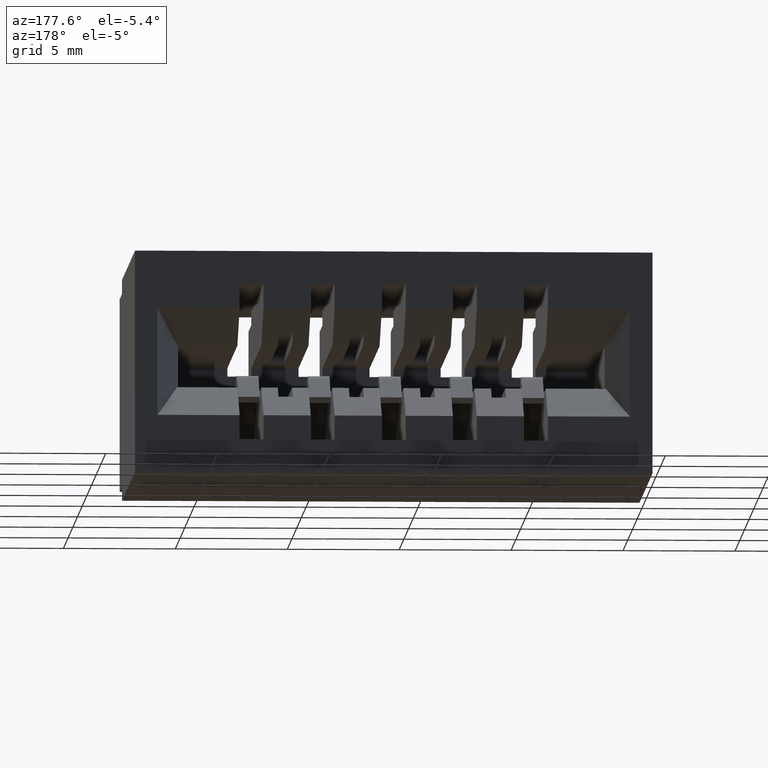
[diagram: clean part render]
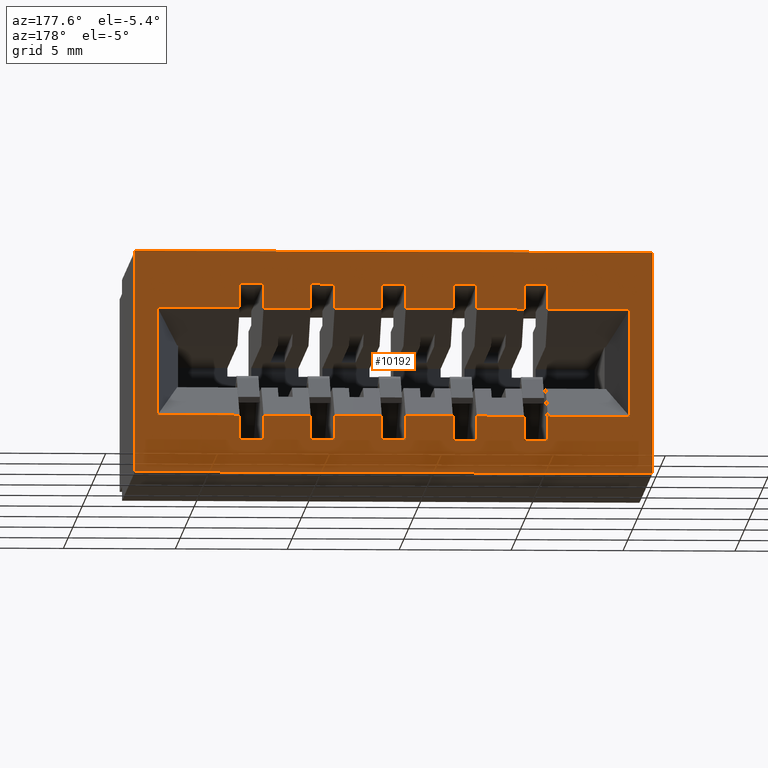
[diagram: same view with one face highlighted and labeled with its STEP entity id]
A machine part, auxiliary view. The second image highlights one B-rep face of the part: STEP entity #10192.
In plain terms, the highlighted planar face has unit normal (0, -1, 0).
Its self-contained STEP definition (entity closure, byte-faithful):
#2 = VERTEX_POINT ( 'NONE', #4984 ) ;
#6 = LINE ( 'NONE', #3711, #7190 ) ;
#96 = ORIENTED_EDGE ( 'NONE', *, *, #2726, .T. ) ;
#138 = CARTESIAN_POINT ( 'NONE',  ( 0.7259999999999997566, 0.6449999999999999067, -5.373951300518784932E-17 ) ) ;
#142 = DIRECTION ( 'NONE',  ( 1.000000000000000000, -0.0000000000000000000, -2.307304048702925122E-16 ) ) ;
#153 = FACE_BOUND ( 'NONE', #6422, .T. ) ;
#180 = LINE ( 'NONE', #1021, #1810 ) ;
#216 = LINE ( 'NONE', #4174, #1243 ) ;
#247 = CARTESIAN_POINT ( 'NONE',  ( 0.9099999999999998090, 0.6449999999999999067, 0.0000000000000000000 ) ) ;
#252 = VERTEX_POINT ( 'NONE', #1601 ) ;
#270 = ORIENTED_EDGE ( 'NONE', *, *, #12639, .F. ) ;
#410 = LINE ( 'NONE', #4374, #7121 ) ;
#424 = LINE ( 'NONE', #3350, #3172 ) ;
#435 = LINE ( 'NONE', #1474, #12814 ) ;
#444 = CARTESIAN_POINT ( 'NONE',  ( 0.3509999999999997566, 0.6449999999999999067, -0.1002500000000000058 ) ) ;
#471 = DIRECTION ( 'NONE',  ( 1.000000000000000000, -0.0000000000000000000, -2.307304048702925122E-16 ) ) ;
#492 = VERTEX_POINT ( 'NONE', #12077 ) ;
#513 = VECTOR ( 'NONE', #629, 39.37007874015748143 ) ;
#553 = CARTESIAN_POINT ( 'NONE',  ( 0.8704026225835154174, 0.6449999999999999067, -0.1002500000000000058 ) ) ;
#565 = DIRECTION ( 'NONE',  ( 2.385081683068867604E-16, 0.0000000000000000000, 1.000000000000000000 ) ) ;
#598 = VECTOR ( 'NONE', #1193, 39.37007874015748143 ) ;
#629 = DIRECTION ( 'NONE',  ( -1.000000000000000000, 0.0000000000000000000, 0.0000000000000000000 ) ) ;
#652 = EDGE_CURVE ( 'NONE', #6637, #2, #10955, .T. ) ;
#720 = ORIENTED_EDGE ( 'NONE', *, *, #2931, .F. ) ;
#743 = EDGE_CURVE ( 'NONE', #3044, #7427, #5314, .T. ) ;
#783 = CARTESIAN_POINT ( 'NONE',  ( 0.3509999999999997011, 0.6449999999999999067, -5.373951300518784932E-17 ) ) ;
#809 = VECTOR ( 'NONE', #11128, 39.37007874015748143 ) ;
#814 = CARTESIAN_POINT ( 'NONE',  ( 1.041979362203021564, 0.6449999999999999067, -0.2897500000000000075 ) ) ;
#831 = CARTESIAN_POINT ( 'NONE',  ( 0.03959737741648388515, 0.6449999999999999067, -0.1002500000000000058 ) ) ;
#866 = LINE ( 'NONE', #8915, #3942 ) ;
#983 = EDGE_CURVE ( 'NONE', #5935, #252, #5880, .T. ) ;
#1019 = VERTEX_POINT ( 'NONE', #1204 ) ;
#1021 = CARTESIAN_POINT ( 'NONE',  ( 0.6839999999999997193, 0.6449999999999999067, -4.404883600063556642E-17 ) ) ;
#1029 = DIRECTION ( 'NONE',  ( -1.000000000000000000, 0.0000000000000000000, 0.0000000000000000000 ) ) ;
#1040 = DIRECTION ( 'NONE',  ( 0.0000000000000000000, 0.0000000000000000000, 1.000000000000000000 ) ) ;
#1124 = LINE ( 'NONE', #1190, #1996 ) ;
#1152 = VECTOR ( 'NONE', #8768, 39.37007874015748143 ) ;
#1156 = CARTESIAN_POINT ( 'NONE',  ( 0.3089999999999997193, 0.6449999999999999067, -0.05750000000000000250 ) ) ;
#1185 = VERTEX_POINT ( 'NONE', #11502 ) ;
#1190 = CARTESIAN_POINT ( 'NONE',  ( 0.0000000000000000000, 0.6449999999999999067, 0.0000000000000000000 ) ) ;
#1193 = DIRECTION ( 'NONE',  ( -1.000000000000000000, 0.0000000000000000000, 0.0000000000000000000 ) ) ;
#1204 = CARTESIAN_POINT ( 'NONE',  ( 0.8704026225835154174, 0.6449999999999999067, -0.2897500000000000075 ) ) ;
#1205 = DIRECTION ( 'NONE',  ( 2.385081683068867604E-16, 0.0000000000000000000, 1.000000000000000000 ) ) ;
#1243 = VECTOR ( 'NONE', #2355, 39.37007874015748143 ) ;
#1282 = LINE ( 'NONE', #247, #12277 ) ;
#1314 = DIRECTION ( 'NONE',  ( 0.0000000000000000000, -0.0000000000000000000, -1.000000000000000000 ) ) ;
#1372 = ORIENTED_EDGE ( 'NONE', *, *, #11943, .T. ) ;
#1382 = VECTOR ( 'NONE', #7801, 39.37007874015748143 ) ;
#1389 = VECTOR ( 'NONE', #1040, 39.37007874015748143 ) ;
#1409 = CARTESIAN_POINT ( 'NONE',  ( 0.2259999999999996734, 0.6449999999999999067, -0.05750000000000000944 ) ) ;
#1474 = CARTESIAN_POINT ( 'NONE',  ( 0.6009999999999996456, 0.6449999999999999067, -5.373951300518784932E-17 ) ) ;
#1559 = CARTESIAN_POINT ( 'NONE',  ( 1.041979362203021564, 0.6449999999999999067, -0.2897500000000000075 ) ) ;
#1592 = CARTESIAN_POINT ( 'NONE',  ( 0.3089999999999997748, 0.6449999999999999067, -0.1002500000000000474 ) ) ;
#1601 = CARTESIAN_POINT ( 'NONE',  ( 0.7259999999999997566, 0.6449999999999999067, -0.1002500000000000058 ) ) ;
#1635 = ORIENTED_EDGE ( 'NONE', *, *, #1929, .F. ) ;
#1645 = VECTOR ( 'NONE', #9425, 39.37007874015748143 ) ;
#1722 = CARTESIAN_POINT ( 'NONE',  ( 0.4759999999999996456, 0.6449999999999999067, -0.3325000000000000178 ) ) ;
#1763 = DIRECTION ( 'NONE',  ( 1.000000000000000000, -0.0000000000000000000, -2.307304048702925122E-16 ) ) ;
#1810 = VECTOR ( 'NONE', #7069, 39.37007874015748143 ) ;
#1873 = CARTESIAN_POINT ( 'NONE',  ( 1.041979362203021564, 0.6449999999999999067, -0.1002500000000000058 ) ) ;
#1874 = CARTESIAN_POINT ( 'NONE',  ( 0.5589999999999997193, 0.6449999999999999067, -0.05750000000000000250 ) ) ;
#1892 = LINE ( 'NONE', #4813, #1152 ) ;
#1916 = ORIENTED_EDGE ( 'NONE', *, *, #4747, .T. ) ;
#1929 = EDGE_CURVE ( 'NONE', #6160, #9442, #10510, .T. ) ;
#1969 = VECTOR ( 'NONE', #565, 39.37007874015748143 ) ;
#1979 = CARTESIAN_POINT ( 'NONE',  ( 0.4339999999999996638, 0.6449999999999999067, -0.3325000000000000178 ) ) ;
#1996 = VECTOR ( 'NONE', #9102, 39.37007874015748143 ) ;
#2021 = DIRECTION ( 'NONE',  ( 2.385081683068867604E-16, 0.0000000000000000000, 1.000000000000000000 ) ) ;
#2107 = LINE ( 'NONE', #10074, #598 ) ;
#2111 = ORIENTED_EDGE ( 'NONE', *, *, #12383, .T. ) ;
#2136 = CARTESIAN_POINT ( 'NONE',  ( 0.3509999999999997011, 0.6449999999999999067, -5.373951300518784932E-17 ) ) ;
#2165 = CARTESIAN_POINT ( 'NONE',  ( 0.3089999999999997193, 0.6449999999999999067, -4.404883600063556642E-17 ) ) ;
#2167 = CARTESIAN_POINT ( 'NONE',  ( 0.5589999999999997193, 0.6449999999999999067, -0.05750000000000000250 ) ) ;
#2219 = LINE ( 'NONE', #11993, #5781 ) ;
#2286 = ORIENTED_EDGE ( 'NONE', *, *, #983, .T. ) ;
#2325 = DIRECTION ( 'NONE',  ( 1.000000000000000000, -0.0000000000000000000, -2.307304048702925122E-16 ) ) ;
#2351 = ORIENTED_EDGE ( 'NONE', *, *, #9370, .F. ) ;
#2355 = DIRECTION ( 'NONE',  ( -1.000000000000000000, 0.0000000000000000000, 0.0000000000000000000 ) ) ;
#2359 = CARTESIAN_POINT ( 'NONE',  ( 0.1839999999999996916, 0.6449999999999999067, -0.05750000000000000250 ) ) ;
#2417 = ORIENTED_EDGE ( 'NONE', *, *, #12136, .T. ) ;
#2416 = VERTEX_POINT ( 'NONE', #4597 ) ;
#2426 = CARTESIAN_POINT ( 'NONE',  ( 0.3089999999999996083, 0.6449999999999999067, -0.3325000000000000178 ) ) ;
#2455 = CARTESIAN_POINT ( 'NONE',  ( 0.9099999999999998090, 0.6449999999999999067, 0.0000000000000000000 ) ) ;
#2469 = DIRECTION ( 'NONE',  ( 2.385081683068867604E-16, 0.0000000000000000000, 1.000000000000000000 ) ) ;
#2487 = VECTOR ( 'NONE', #9891, 39.37007874015748143 ) ;
#2488 = CARTESIAN_POINT ( 'NONE',  ( 0.7259999999999997566, 0.6449999999999999067, -5.373951300518784932E-17 ) ) ;
#2525 = VERTEX_POINT ( 'NONE', #11706 ) ;
#2534 = LINE ( 'NONE', #1559, #2564 ) ;
#2564 = VECTOR ( 'NONE', #4542, 39.37007874015748143 ) ;
#2585 = EDGE_CURVE ( 'NONE', #4026, #6786, #2107, .T. ) ;
#2639 = VERTEX_POINT ( 'NONE', #11492 ) ;
#2670 = VERTEX_POINT ( 'NONE', #9487 ) ;
#2689 = CARTESIAN_POINT ( 'NONE',  ( 1.041979362203021564, 0.6449999999999999067, -0.1002500000000000058 ) ) ;
#2726 = EDGE_CURVE ( 'NONE', #3800, #12409, #410, .T. ) ;
#2766 = EDGE_CURVE ( 'NONE', #11235, #4557, #11680, .T. ) ;
#2772 = CARTESIAN_POINT ( 'NONE',  ( 0.2259999999999996179, 0.6449999999999999067, -0.3325000000000000178 ) ) ;
#2922 = ORIENTED_EDGE ( 'NONE', *, *, #10814, .F. ) ;
#2931 = EDGE_CURVE ( 'NONE', #5126, #7046, #12177, .T. ) ;
#2935 = CARTESIAN_POINT ( 'NONE',  ( 1.041979362203021564, 0.6449999999999999067, -0.2897500000000000075 ) ) ;
#3028 = ORIENTED_EDGE ( 'NONE', *, *, #5297, .F. ) ;
#3037 = DIRECTION ( 'NONE',  ( -1.000000000000000000, 0.0000000000000000000, 0.0000000000000000000 ) ) ;
#3044 = VERTEX_POINT ( 'NONE', #11340 ) ;
#3063 = EDGE_CURVE ( 'NONE', #11383, #6305, #10511, .T. ) ;
#3138 = PLANE ( 'NONE',  #10466 ) ;
#3172 = VECTOR ( 'NONE', #1205, 39.37007874015748143 ) ;
#3230 = EDGE_CURVE ( 'NONE', #4279, #8748, #11851, .T. ) ;
#3274 = DIRECTION ( 'NONE',  ( 1.000000000000000000, -0.0000000000000000000, -2.307304048702925122E-16 ) ) ;
#3321 = CARTESIAN_POINT ( 'NONE',  ( 0.4339999999999996638, 0.6449999999999999067, -0.05750000000000000250 ) ) ;
#3327 = VERTEX_POINT ( 'NONE', #444 ) ;
#3341 = VERTEX_POINT ( 'NONE', #10300 ) ;
#3350 = CARTESIAN_POINT ( 'NONE',  ( 0.5589999999999997193, 0.6449999999999999067, -4.404883600063556642E-17 ) ) ;
#3463 = LINE ( 'NONE', #2426, #7028 ) ;
#3469 = ORIENTED_EDGE ( 'NONE', *, *, #743, .T. ) ;
#3501 = VERTEX_POINT ( 'NONE', #10804 ) ;
#3525 = VECTOR ( 'NONE', #11987, 39.37007874015748143 ) ;
#3566 = ORIENTED_EDGE ( 'NONE', *, *, #7139, .F. ) ;
#3619 = CARTESIAN_POINT ( 'NONE',  ( 0.6839999999999997193, 0.6449999999999999067, -0.1002499999999999919 ) ) ;
#3639 = LINE ( 'NONE', #12302, #4267 ) ;
#3711 = CARTESIAN_POINT ( 'NONE',  ( 0.5589999999999996083, 0.6449999999999999067, -0.3325000000000000178 ) ) ;
#3761 = DIRECTION ( 'NONE',  ( 2.385081683068867604E-16, 0.0000000000000000000, 1.000000000000000000 ) ) ;
#3800 = VERTEX_POINT ( 'NONE', #1722 ) ;
#3812 = CARTESIAN_POINT ( 'NONE',  ( 0.4759999999999996456, 0.6449999999999999067, -0.1002500000000000058 ) ) ;
#3834 = VERTEX_POINT ( 'NONE', #8726 ) ;
#3884 = LINE ( 'NONE', #7976, #11598 ) ;
#3940 = VECTOR ( 'NONE', #8199, 39.37007874015748143 ) ;
#3942 = VECTOR ( 'NONE', #12657, 39.37007874015748143 ) ;
#3957 = EDGE_CURVE ( 'NONE', #2639, #6160, #5153, .T. ) ;
#3995 = EDGE_CURVE ( 'NONE', #10841, #3800, #7892, .T. ) ;
#4026 = VERTEX_POINT ( 'NONE', #4054 ) ;
#4054 = CARTESIAN_POINT ( 'NONE',  ( 0.5589999999999997193, 0.6449999999999999067, -0.1002499999999999780 ) ) ;
#4078 = DIRECTION ( 'NONE',  ( 1.000000000000000000, -0.0000000000000000000, -2.307304048702925122E-16 ) ) ;
#4080 = CARTESIAN_POINT ( 'NONE',  ( 0.6839999999999997193, 0.6449999999999999067, -0.05750000000000000250 ) ) ;
#4116 = EDGE_CURVE ( 'NONE', #11654, #3044, #8209, .T. ) ;
#4145 = LINE ( 'NONE', #4334, #10640 ) ;
#4174 = CARTESIAN_POINT ( 'NONE',  ( 1.041979362203021564, 0.6449999999999999067, -0.2897500000000000075 ) ) ;
#4201 = ORIENTED_EDGE ( 'NONE', *, *, #5141, .F. ) ;
#4202 = VERTEX_POINT ( 'NONE', #2455 ) ;
#4212 = VECTOR ( 'NONE', #4548, 39.37007874015748143 ) ;
#4238 = DIRECTION ( 'NONE',  ( 2.385081683068867604E-16, 0.0000000000000000000, 1.000000000000000000 ) ) ;
#4248 = ORIENTED_EDGE ( 'NONE', *, *, #8946, .T. ) ;
#4258 = VECTOR ( 'NONE', #12520, 39.37007874015748143 ) ;
#4267 = VECTOR ( 'NONE', #2469, 39.37007874015748143 ) ;
#4279 = VERTEX_POINT ( 'NONE', #3619 ) ;
#4321 = ORIENTED_EDGE ( 'NONE', *, *, #11388, .F. ) ;
#4334 = CARTESIAN_POINT ( 'NONE',  ( 0.6839999999999997193, 0.6449999999999999067, -0.05750000000000000250 ) ) ;
#4374 = CARTESIAN_POINT ( 'NONE',  ( 0.4759999999999996456, 0.6449999999999999067, -5.373951300518784932E-17 ) ) ;
#4430 = VERTEX_POINT ( 'NONE', #9890 ) ;
#4478 = VERTEX_POINT ( 'NONE', #5032 ) ;
#4514 = DIRECTION ( 'NONE',  ( 2.385081683068867604E-16, 0.0000000000000000000, 1.000000000000000000 ) ) ;
#4539 = ORIENTED_EDGE ( 'NONE', *, *, #11972, .T. ) ;
#4542 = DIRECTION ( 'NONE',  ( -1.000000000000000000, 0.0000000000000000000, 0.0000000000000000000 ) ) ;
#4548 = DIRECTION ( 'NONE',  ( 2.385081683068867604E-16, 0.0000000000000000000, 1.000000000000000000 ) ) ;
#4557 = VERTEX_POINT ( 'NONE', #7304 ) ;
#4597 = CARTESIAN_POINT ( 'NONE',  ( 0.6009999999999996456, 0.6449999999999999067, -0.05750000000000000944 ) ) ;
#4631 = VECTOR ( 'NONE', #5729, 39.37007874015748143 ) ;
#4649 = ORIENTED_EDGE ( 'NONE', *, *, #5337, .T. ) ;
#4651 = VECTOR ( 'NONE', #3274, 39.37007874015748143 ) ;
#4747 = EDGE_CURVE ( 'NONE', #12412, #12582, #11559, .T. ) ;
#4793 = ORIENTED_EDGE ( 'NONE', *, *, #11061, .T. ) ;
#4813 = CARTESIAN_POINT ( 'NONE',  ( 1.041979362203021564, 0.6449999999999999067, -0.2897500000000000075 ) ) ;
#4838 = VECTOR ( 'NONE', #12266, 39.37007874015748143 ) ;
#4889 = CARTESIAN_POINT ( 'NONE',  ( 0.5589999999999996083, 0.6449999999999999067, -0.3325000000000000178 ) ) ;
#4984 = CARTESIAN_POINT ( 'NONE',  ( 0.2259999999999996456, 0.6449999999999999067, -0.2897499999999999520 ) ) ;
#5007 = DIRECTION ( 'NONE',  ( 0.0000000000000000000, 0.0000000000000000000, -1.000000000000000000 ) ) ;
#5017 = DIRECTION ( 'NONE',  ( 2.385081683068867604E-16, 0.0000000000000000000, 1.000000000000000000 ) ) ;
#5032 = CARTESIAN_POINT ( 'NONE',  ( 0.7259999999999997566, 0.6449999999999999067, -0.05750000000000000944 ) ) ;
#5052 = CARTESIAN_POINT ( 'NONE',  ( 0.03959737741648389903, 0.6449999999999999067, -0.2897500000000000075 ) ) ;
#5123 = ORIENTED_EDGE ( 'NONE', *, *, #7578, .T. ) ;
#5126 = VERTEX_POINT ( 'NONE', #7659 ) ;
#5141 = EDGE_CURVE ( 'NONE', #2670, #2, #2534, .T. ) ;
#5153 = LINE ( 'NONE', #10980, #9617 ) ;
#5157 = EDGE_LOOP ( 'NONE', ( #4248, #7480, #4649, #1916 ) ) ;
#5189 = EDGE_CURVE ( 'NONE', #7145, #2525, #12683, .T. ) ;
#5246 = LINE ( 'NONE', #9451, #1969 ) ;
#5257 = VERTEX_POINT ( 'NONE', #5052 ) ;
#5297 = EDGE_CURVE ( 'NONE', #11124, #4478, #4145, .T. ) ;
#5314 = LINE ( 'NONE', #138, #3525 ) ;
#5337 = EDGE_CURVE ( 'NONE', #4202, #12412, #1282, .T. ) ;
#5371 = LINE ( 'NONE', #8292, #809 ) ;
#5435 = CARTESIAN_POINT ( 'NONE',  ( 0.1839999999999996361, 0.6449999999999999067, -0.3325000000000000178 ) ) ;
#5469 = VECTOR ( 'NONE', #1029, 39.37007874015748143 ) ;
#5475 = CARTESIAN_POINT ( 'NONE',  ( 0.6009999999999996456, 0.6449999999999999067, -5.373951300518784932E-17 ) ) ;
#5516 = ORIENTED_EDGE ( 'NONE', *, *, #9209, .F. ) ;
#5544 = ORIENTED_EDGE ( 'NONE', *, *, #5783, .F. ) ;
#5546 = LINE ( 'NONE', #2689, #4258 ) ;
#5570 = ORIENTED_EDGE ( 'NONE', *, *, #3995, .T. ) ;
#5630 = LINE ( 'NONE', #814, #513 ) ;
#5644 = CARTESIAN_POINT ( 'NONE',  ( 0.9099999999999998090, 0.6449999999999999067, -0.3900000000000000133 ) ) ;
#5662 = VECTOR ( 'NONE', #142, 39.37007874015748143 ) ;
#5726 = CARTESIAN_POINT ( 'NONE',  ( 0.6839999999999996083, 0.6449999999999999067, -0.3325000000000000178 ) ) ;
#5729 = DIRECTION ( 'NONE',  ( -1.000000000000000000, 0.0000000000000000000, 0.0000000000000000000 ) ) ;
#5781 = VECTOR ( 'NONE', #11927, 39.37007874015748143 ) ;
#5783 = EDGE_CURVE ( 'NONE', #4026, #6177, #424, .T. ) ;
#5880 = LINE ( 'NONE', #9830, #2487 ) ;
#5885 = EDGE_CURVE ( 'NONE', #8164, #492, #12336, .T. ) ;
#5893 = LINE ( 'NONE', #8451, #10962 ) ;
#5902 = VERTEX_POINT ( 'NONE', #6394 ) ;
#5931 = CARTESIAN_POINT ( 'NONE',  ( 0.6839999999999996083, 0.6449999999999999067, -0.2897500000000000075 ) ) ;
#5935 = VERTEX_POINT ( 'NONE', #553 ) ;
#6129 = DIRECTION ( 'NONE',  ( 2.385081683068867604E-16, 0.0000000000000000000, 1.000000000000000000 ) ) ;
#6149 = ORIENTED_EDGE ( 'NONE', *, *, #8124, .T. ) ;
#6160 = VERTEX_POINT ( 'NONE', #2359 ) ;
#6163 = ORIENTED_EDGE ( 'NONE', *, *, #6359, .T. ) ;
#6177 = VERTEX_POINT ( 'NONE', #2167 ) ;
#6182 = LINE ( 'NONE', #9162, #3940 ) ;
#6249 = EDGE_CURVE ( 'NONE', #3501, #12358, #3463, .T. ) ;
#6305 = VERTEX_POINT ( 'NONE', #9553 ) ;
#6310 = ORIENTED_EDGE ( 'NONE', *, *, #2585, .T. ) ;
#6338 = ORIENTED_EDGE ( 'NONE', *, *, #6249, .T. ) ;
#6359 = EDGE_CURVE ( 'NONE', #3834, #2525, #7359, .T. ) ;
#6381 = CARTESIAN_POINT ( 'NONE',  ( 0.7259999999999995346, 0.6449999999999999067, -0.2897499999999999520 ) ) ;
#6394 = CARTESIAN_POINT ( 'NONE',  ( 0.3509999999999997011, 0.6449999999999999067, -0.05750000000000000944 ) ) ;
#6422 = EDGE_LOOP ( 'NONE', ( #7110, #2417, #2286, #9033, #3028, #270, #7984, #6149, #5516, #5544, #6310, #7593, #720, #11157, #8637, #4793, #2351, #4321, #2111, #8825, #1635, #10164, #6690, #5123, #9884, #11045, #8622, #8191, #4201, #2922, #6338, #1372, #8867, #12016, #5570, #96, #12554, #12341, #4539, #6163, #10966, #3566, #7080, #3469 ) ) ;
#6467 = CARTESIAN_POINT ( 'NONE',  ( 0.1839999999999996916, 0.6449999999999999067, -4.404883600063556642E-17 ) ) ;
#6637 = VERTEX_POINT ( 'NONE', #2772 ) ;
#6681 = LINE ( 'NONE', #6804, #10507 ) ;
#6690 = ORIENTED_EDGE ( 'NONE', *, *, #9978, .T. ) ;
#6786 = VERTEX_POINT ( 'NONE', #3812 ) ;
#6804 = CARTESIAN_POINT ( 'NONE',  ( 1.041979362203021564, 0.6449999999999999067, -0.1002500000000000058 ) ) ;
#6808 = VECTOR ( 'NONE', #11338, 39.37007874015748143 ) ;
#6873 = DIRECTION ( 'NONE',  ( -1.000000000000000000, 0.0000000000000000000, 0.0000000000000000000 ) ) ;
#6971 = VECTOR ( 'NONE', #4514, 39.37007874015748143 ) ;
#7023 = VERTEX_POINT ( 'NONE', #1592 ) ;
#7028 = VECTOR ( 'NONE', #471, 39.37007874015748143 ) ;
#7046 = VERTEX_POINT ( 'NONE', #9568 ) ;
#7069 = DIRECTION ( 'NONE',  ( 2.385081683068867604E-16, 0.0000000000000000000, 1.000000000000000000 ) ) ;
#7080 = ORIENTED_EDGE ( 'NONE', *, *, #4116, .T. ) ;
#7110 = ORIENTED_EDGE ( 'NONE', *, *, #9010, .F. ) ;
#7121 = VECTOR ( 'NONE', #11619, 39.37007874015748143 ) ;
#7139 = EDGE_CURVE ( 'NONE', #11654, #7145, #866, .T. ) ;
#7145 = VERTEX_POINT ( 'NONE', #5931 ) ;
#7190 = VECTOR ( 'NONE', #1763, 39.37007874015748143 ) ;
#7260 = DIRECTION ( 'NONE',  ( 0.0000000000000000000, 0.0000000000000000000, -1.000000000000000000 ) ) ;
#7304 = CARTESIAN_POINT ( 'NONE',  ( 0.3509999999999997011, 0.6449999999999999067, -0.2897500000000000075 ) ) ;
#7359 = LINE ( 'NONE', #5475, #1645 ) ;
#7384 = VECTOR ( 'NONE', #5017, 39.37007874015748143 ) ;
#7427 = VERTEX_POINT ( 'NONE', #6381 ) ;
#7480 = ORIENTED_EDGE ( 'NONE', *, *, #11413, .T. ) ;
#7578 = EDGE_CURVE ( 'NONE', #11811, #5257, #12646, .T. ) ;
#7593 = ORIENTED_EDGE ( 'NONE', *, *, #7751, .T. ) ;
#7657 = DIRECTION ( 'NONE',  ( -1.000000000000000000, 0.0000000000000000000, 0.0000000000000000000 ) ) ;
#7659 = CARTESIAN_POINT ( 'NONE',  ( 0.4339999999999996638, 0.6449999999999999067, -0.05750000000000000250 ) ) ;
#7694 = CARTESIAN_POINT ( 'NONE',  ( 0.4339999999999996083, 0.6449999999999999067, -0.2897500000000000075 ) ) ;
#7751 = EDGE_CURVE ( 'NONE', #6786, #7046, #2219, .T. ) ;
#7801 = DIRECTION ( 'NONE',  ( 2.385081683068867604E-16, 0.0000000000000000000, 1.000000000000000000 ) ) ;
#7892 = LINE ( 'NONE', #1979, #10018 ) ;
#7976 = CARTESIAN_POINT ( 'NONE',  ( 0.1839999999999996361, 0.6449999999999999067, -0.3325000000000000178 ) ) ;
#7984 = ORIENTED_EDGE ( 'NONE', *, *, #3230, .T. ) ;
#8007 = VECTOR ( 'NONE', #4238, 39.37007874015748143 ) ;
#8124 = EDGE_CURVE ( 'NONE', #8748, #2416, #435, .T. ) ;
#8164 = VERTEX_POINT ( 'NONE', #5435 ) ;
#8191 = ORIENTED_EDGE ( 'NONE', *, *, #652, .T. ) ;
#8199 = DIRECTION ( 'NONE',  ( -0.0000000000000000000, -0.0000000000000000000, 1.000000000000000000 ) ) ;
#8201 = LINE ( 'NONE', #2488, #8007 ) ;
#8209 = LINE ( 'NONE', #12137, #4651 ) ;
#8249 = EDGE_CURVE ( 'NONE', #1185, #5126, #5371, .T. ) ;
#8292 = CARTESIAN_POINT ( 'NONE',  ( 0.4339999999999996638, 0.6449999999999999067, -4.404883600063556642E-17 ) ) ;
#8339 = CARTESIAN_POINT ( 'NONE',  ( 0.0000000000000000000, 0.6449999999999999067, -0.3900000000000000133 ) ) ;
#8360 = CARTESIAN_POINT ( 'NONE',  ( 0.2259999999999996734, 0.6449999999999999067, -5.373951300518784932E-17 ) ) ;
#8436 = VECTOR ( 'NONE', #6873, 39.37007874015748143 ) ;
#8451 = CARTESIAN_POINT ( 'NONE',  ( 0.2259999999999996734, 0.6449999999999999067, -5.373951300518784932E-17 ) ) ;
#8622 = ORIENTED_EDGE ( 'NONE', *, *, #9221, .T. ) ;
#8637 = ORIENTED_EDGE ( 'NONE', *, *, #12414, .T. ) ;
#8726 = CARTESIAN_POINT ( 'NONE',  ( 0.6009999999999995346, 0.6449999999999999067, -0.3325000000000000178 ) ) ;
#8748 = VERTEX_POINT ( 'NONE', #9622 ) ;
#8768 = DIRECTION ( 'NONE',  ( -1.000000000000000000, 0.0000000000000000000, 0.0000000000000000000 ) ) ;
#8815 = DIRECTION ( 'NONE',  ( 1.000000000000000000, -0.0000000000000000000, -2.307304048702925122E-16 ) ) ;
#8825 = ORIENTED_EDGE ( 'NONE', *, *, #9081, .T. ) ;
#8867 = ORIENTED_EDGE ( 'NONE', *, *, #2766, .F. ) ;
#8915 = CARTESIAN_POINT ( 'NONE',  ( 0.6839999999999997193, 0.6449999999999999067, -4.404883600063556642E-17 ) ) ;
#8946 = EDGE_CURVE ( 'NONE', #12582, #9851, #6182, .T. ) ;
#8979 = DIRECTION ( 'NONE',  ( 1.000000000000000000, -0.0000000000000000000, -2.307304048702925122E-16 ) ) ;
#9010 = EDGE_CURVE ( 'NONE', #1019, #7427, #216, .T. ) ;
#9033 = ORIENTED_EDGE ( 'NONE', *, *, #11436, .T. ) ;
#9081 = EDGE_CURVE ( 'NONE', #4430, #9442, #5893, .T. ) ;
#9102 = DIRECTION ( 'NONE',  ( 1.000000000000000000, 0.0000000000000000000, 0.0000000000000000000 ) ) ;
#9162 = CARTESIAN_POINT ( 'NONE',  ( 0.0000000000000000000, 0.6449999999999999067, 0.0000000000000000000 ) ) ;
#9209 = EDGE_CURVE ( 'NONE', #6177, #2416, #10751, .T. ) ;
#9221 = EDGE_CURVE ( 'NONE', #8164, #6637, #3884, .T. ) ;
#9357 = DIRECTION ( 'NONE',  ( 0.0000000000000000000, -1.000000000000000000, 0.0000000000000000000 ) ) ;
#9370 = EDGE_CURVE ( 'NONE', #3341, #5902, #10036, .T. ) ;
#9371 = LINE ( 'NONE', #2136, #6971 ) ;
#9425 = DIRECTION ( 'NONE',  ( 2.385081683068867604E-16, 0.0000000000000000000, 1.000000000000000000 ) ) ;
#9442 = VERTEX_POINT ( 'NONE', #1409 ) ;
#9449 = DIRECTION ( 'NONE',  ( 2.385081683068867604E-16, 0.0000000000000000000, 1.000000000000000000 ) ) ;
#9451 = CARTESIAN_POINT ( 'NONE',  ( 0.4339999999999996638, 0.6449999999999999067, -4.404883600063556642E-17 ) ) ;
#9471 = EDGE_CURVE ( 'NONE', #10841, #11235, #5246, .T. ) ;
#9487 = CARTESIAN_POINT ( 'NONE',  ( 0.3089999999999997193, 0.6449999999999999067, -0.2897500000000000075 ) ) ;
#9498 = DIRECTION ( 'NONE',  ( 2.385081683068867604E-16, 0.0000000000000000000, 1.000000000000000000 ) ) ;
#9553 = CARTESIAN_POINT ( 'NONE',  ( 0.5589999999999996083, 0.6449999999999999067, -0.2897500000000000075 ) ) ;
#9568 = CARTESIAN_POINT ( 'NONE',  ( 0.4759999999999996456, 0.6449999999999999067, -0.05750000000000000944 ) ) ;
#9611 = LINE ( 'NONE', #783, #1382 ) ;
#9617 = VECTOR ( 'NONE', #6129, 39.37007874015748143 ) ;
#9619 = EDGE_CURVE ( 'NONE', #6305, #12409, #5630, .T. ) ;
#9622 = CARTESIAN_POINT ( 'NONE',  ( 0.6009999999999996456, 0.6449999999999999067, -0.1002500000000000058 ) ) ;
#9830 = CARTESIAN_POINT ( 'NONE',  ( 1.041979362203021564, 0.6449999999999999067, -0.1002500000000000058 ) ) ;
#9851 = VERTEX_POINT ( 'NONE', #10403 ) ;
#9884 = ORIENTED_EDGE ( 'NONE', *, *, #10520, .F. ) ;
#9890 = CARTESIAN_POINT ( 'NONE',  ( 0.2259999999999997289, 0.6449999999999999067, -0.1002500000000000058 ) ) ;
#9891 = DIRECTION ( 'NONE',  ( -1.000000000000000000, 0.0000000000000000000, 0.0000000000000000000 ) ) ;
#9904 = CARTESIAN_POINT ( 'NONE',  ( 0.4339999999999996638, 0.6449999999999999067, -0.3325000000000000178 ) ) ;
#9908 = CARTESIAN_POINT ( 'NONE',  ( 1.041979362203021564, 0.6449999999999999067, -0.1002500000000000058 ) ) ;
#9938 = VECTOR ( 'NONE', #8815, 39.37007874015748143 ) ;
#9978 = EDGE_CURVE ( 'NONE', #2639, #11811, #5546, .T. ) ;
#10018 = VECTOR ( 'NONE', #8979, 39.37007874015748143 ) ;
#10036 = LINE ( 'NONE', #1156, #11881 ) ;
#10074 = CARTESIAN_POINT ( 'NONE',  ( 1.041979362203021564, 0.6449999999999999067, -0.1002500000000000058 ) ) ;
#10164 = ORIENTED_EDGE ( 'NONE', *, *, #3957, .F. ) ;
#10169 = CARTESIAN_POINT ( 'NONE',  ( 0.0000000000000000000, 0.6449999999999999067, -0.3900000000000000133 ) ) ;
#10192 = ADVANCED_FACE ( 'NONE', ( #10971, #153 ), #3138, .F. ) ;
#10248 = CARTESIAN_POINT ( 'NONE',  ( 0.1839999999999996916, 0.6449999999999999067, -0.05750000000000000250 ) ) ;
#10300 = CARTESIAN_POINT ( 'NONE',  ( 0.3089999999999997193, 0.6449999999999999067, -0.05750000000000000250 ) ) ;
#10403 = CARTESIAN_POINT ( 'NONE',  ( 0.0000000000000000000, 0.6449999999999999067, 0.0000000000000000000 ) ) ;
#10447 = CARTESIAN_POINT ( 'NONE',  ( 0.5589999999999997193, 0.6449999999999999067, -4.404883600063556642E-17 ) ) ;
#10466 = AXIS2_PLACEMENT_3D ( 'NONE', #11101, #9357, #1314 ) ;
#10506 = CARTESIAN_POINT ( 'NONE',  ( 0.3509999999999995901, 0.6449999999999999067, -0.3325000000000000178 ) ) ;
#10507 = VECTOR ( 'NONE', #7657, 39.37007874015748143 ) ;
#10510 = LINE ( 'NONE', #10248, #6808 ) ;
#10511 = LINE ( 'NONE', #10447, #4212 ) ;
#10520 = EDGE_CURVE ( 'NONE', #492, #5257, #1892, .T. ) ;
#10569 = LINE ( 'NONE', #1873, #8436 ) ;
#10616 = VECTOR ( 'NONE', #9498, 39.37007874015748143 ) ;
#10640 = VECTOR ( 'NONE', #12225, 39.37007874015748143 ) ;
#10750 = CARTESIAN_POINT ( 'NONE',  ( 0.4759999999999995901, 0.6449999999999999067, -0.2897500000000000075 ) ) ;
#10751 = LINE ( 'NONE', #1874, #9938 ) ;
#10804 = CARTESIAN_POINT ( 'NONE',  ( 0.3089999999999996083, 0.6449999999999999067, -0.3325000000000000178 ) ) ;
#10814 = EDGE_CURVE ( 'NONE', #3501, #2670, #3639, .T. ) ;
#10841 = VERTEX_POINT ( 'NONE', #9904 ) ;
#10955 = LINE ( 'NONE', #8360, #11375 ) ;
#10962 = VECTOR ( 'NONE', #3761, 39.37007874015748143 ) ;
#10966 = ORIENTED_EDGE ( 'NONE', *, *, #5189, .F. ) ;
#10971 = FACE_OUTER_BOUND ( 'NONE', #5157, .T. ) ;
#10980 = CARTESIAN_POINT ( 'NONE',  ( 0.1839999999999996916, 0.6449999999999999067, -4.404883600063556642E-17 ) ) ;
#11015 = CARTESIAN_POINT ( 'NONE',  ( 0.8704026225835154174, 0.6449999999999999067, -0.3900000000000000133 ) ) ;
#11045 = ORIENTED_EDGE ( 'NONE', *, *, #5885, .F. ) ;
#11061 = EDGE_CURVE ( 'NONE', #3327, #5902, #9371, .T. ) ;
#11101 = CARTESIAN_POINT ( 'NONE',  ( 0.0000000000000000000, 0.6449999999999999067, -0.3900000000000000133 ) ) ;
#11124 = VERTEX_POINT ( 'NONE', #4080 ) ;
#11128 = DIRECTION ( 'NONE',  ( 2.385081683068867604E-16, 0.0000000000000000000, 1.000000000000000000 ) ) ;
#11157 = ORIENTED_EDGE ( 'NONE', *, *, #8249, .F. ) ;
#11206 = LINE ( 'NONE', #11015, #1389 ) ;
#11235 = VERTEX_POINT ( 'NONE', #7694 ) ;
#11338 = DIRECTION ( 'NONE',  ( 1.000000000000000000, -0.0000000000000000000, -2.307304048702925122E-16 ) ) ;
#11340 = CARTESIAN_POINT ( 'NONE',  ( 0.7259999999999995346, 0.6449999999999999067, -0.3325000000000000178 ) ) ;
#11375 = VECTOR ( 'NONE', #2021, 39.37007874015748143 ) ;
#11383 = VERTEX_POINT ( 'NONE', #4889 ) ;
#11388 = EDGE_CURVE ( 'NONE', #7023, #3341, #11937, .T. ) ;
#11413 = EDGE_CURVE ( 'NONE', #9851, #4202, #1124, .T. ) ;
#11436 = EDGE_CURVE ( 'NONE', #252, #4478, #8201, .T. ) ;
#11462 = VECTOR ( 'NONE', #3037, 39.37007874015748143 ) ;
#11492 = CARTESIAN_POINT ( 'NONE',  ( 0.1839999999999996916, 0.6449999999999999067, -0.1002500000000000474 ) ) ;
#11502 = CARTESIAN_POINT ( 'NONE',  ( 0.4339999999999996638, 0.6449999999999999067, -0.1002499999999999780 ) ) ;
#11559 = LINE ( 'NONE', #8339, #4838 ) ;
#11598 = VECTOR ( 'NONE', #4078, 39.37007874015748143 ) ;
#11619 = DIRECTION ( 'NONE',  ( 2.385081683068867604E-16, 0.0000000000000000000, 1.000000000000000000 ) ) ;
#11654 = VERTEX_POINT ( 'NONE', #5726 ) ;
#11680 = LINE ( 'NONE', #2935, #4631 ) ;
#11706 = CARTESIAN_POINT ( 'NONE',  ( 0.6009999999999996456, 0.6449999999999999067, -0.2897500000000000075 ) ) ;
#11811 = VERTEX_POINT ( 'NONE', #831 ) ;
#11851 = LINE ( 'NONE', #9908, #5469 ) ;
#11867 = CARTESIAN_POINT ( 'NONE',  ( 0.03959737741648388515, 0.6449999999999999067, -0.3900000000000000133 ) ) ;
#11881 = VECTOR ( 'NONE', #2325, 39.37007874015748143 ) ;
#11907 = CARTESIAN_POINT ( 'NONE',  ( 1.041979362203021564, 0.6449999999999999067, -0.2897500000000000075 ) ) ;
#11927 = DIRECTION ( 'NONE',  ( 2.385081683068867604E-16, 0.0000000000000000000, 1.000000000000000000 ) ) ;
#11937 = LINE ( 'NONE', #2165, #7384 ) ;
#11943 = EDGE_CURVE ( 'NONE', #12358, #4557, #9611, .T. ) ;
#11971 = VECTOR ( 'NONE', #5007, 39.37007874015748143 ) ;
#11972 = EDGE_CURVE ( 'NONE', #11383, #3834, #6, .T. ) ;
#11987 = DIRECTION ( 'NONE',  ( 2.385081683068867604E-16, 0.0000000000000000000, 1.000000000000000000 ) ) ;
#11993 = CARTESIAN_POINT ( 'NONE',  ( 0.4759999999999996456, 0.6449999999999999067, -5.373951300518784932E-17 ) ) ;
#12016 = ORIENTED_EDGE ( 'NONE', *, *, #9471, .F. ) ;
#12077 = CARTESIAN_POINT ( 'NONE',  ( 0.1839999999999996638, 0.6449999999999999067, -0.2897499999999999520 ) ) ;
#12136 = EDGE_CURVE ( 'NONE', #1019, #5935, #11206, .T. ) ;
#12137 = CARTESIAN_POINT ( 'NONE',  ( 0.6839999999999996083, 0.6449999999999999067, -0.3325000000000000178 ) ) ;
#12177 = LINE ( 'NONE', #3321, #5662 ) ;
#12225 = DIRECTION ( 'NONE',  ( 1.000000000000000000, -0.0000000000000000000, -2.307304048702925122E-16 ) ) ;
#12266 = DIRECTION ( 'NONE',  ( -1.000000000000000000, -0.0000000000000000000, -0.0000000000000000000 ) ) ;
#12277 = VECTOR ( 'NONE', #7260, 39.37007874015748143 ) ;
#12302 = CARTESIAN_POINT ( 'NONE',  ( 0.3089999999999997193, 0.6449999999999999067, -4.404883600063556642E-17 ) ) ;
#12336 = LINE ( 'NONE', #6467, #10616 ) ;
#12341 = ORIENTED_EDGE ( 'NONE', *, *, #3063, .F. ) ;
#12358 = VERTEX_POINT ( 'NONE', #10506 ) ;
#12383 = EDGE_CURVE ( 'NONE', #7023, #4430, #6681, .T. ) ;
#12409 = VERTEX_POINT ( 'NONE', #10750 ) ;
#12412 = VERTEX_POINT ( 'NONE', #5644 ) ;
#12414 = EDGE_CURVE ( 'NONE', #1185, #3327, #10569, .T. ) ;
#12520 = DIRECTION ( 'NONE',  ( -1.000000000000000000, 0.0000000000000000000, 0.0000000000000000000 ) ) ;
#12554 = ORIENTED_EDGE ( 'NONE', *, *, #9619, .F. ) ;
#12582 = VERTEX_POINT ( 'NONE', #10169 ) ;
#12639 = EDGE_CURVE ( 'NONE', #4279, #11124, #180, .T. ) ;
#12646 = LINE ( 'NONE', #11867, #11971 ) ;
#12657 = DIRECTION ( 'NONE',  ( 2.385081683068867604E-16, 0.0000000000000000000, 1.000000000000000000 ) ) ;
#12683 = LINE ( 'NONE', #11907, #11462 ) ;
#12814 = VECTOR ( 'NONE', #9449, 39.37007874015748143 ) ;